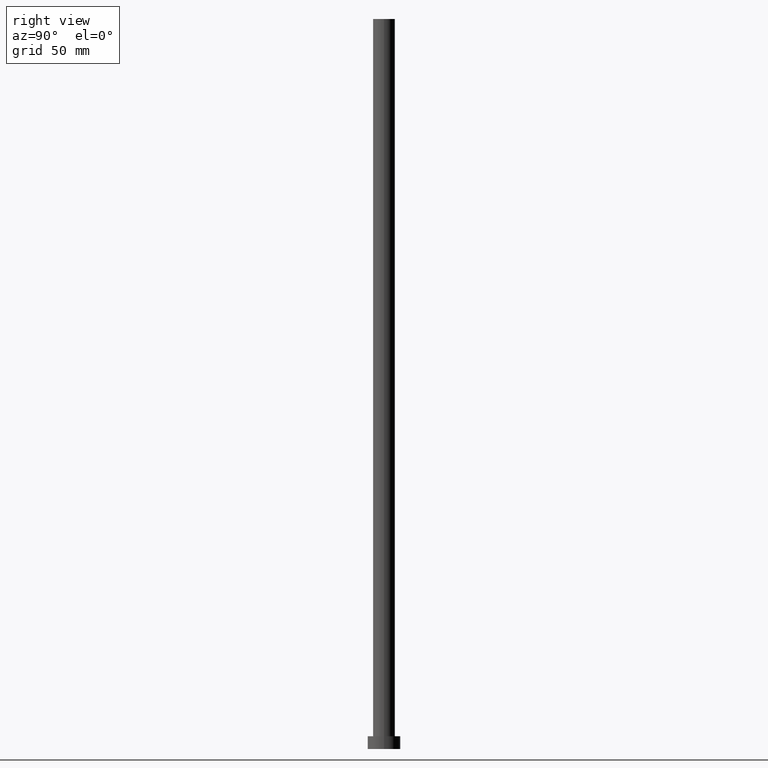
[diagram: clean part render]
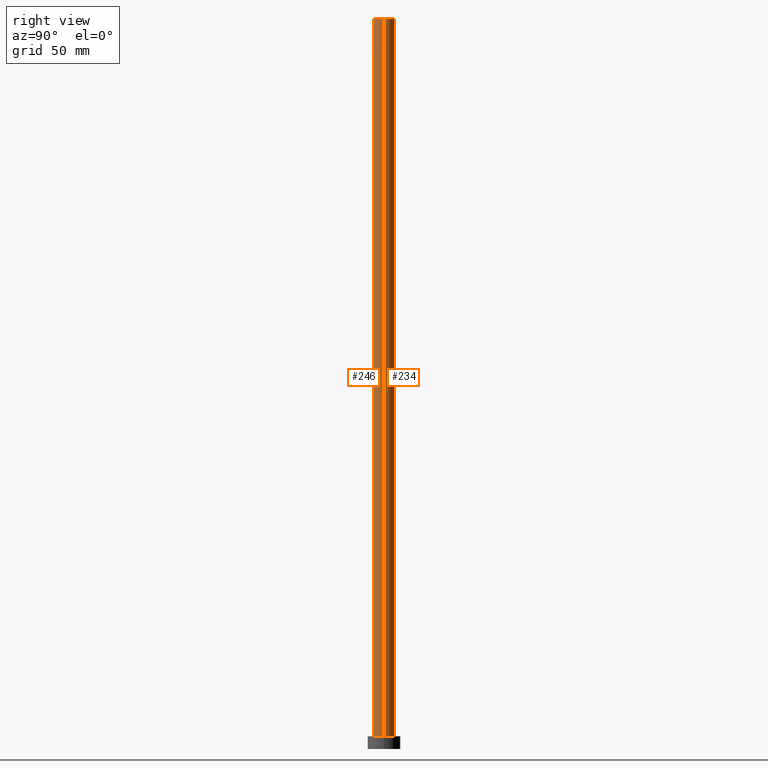
[diagram: same view with one multi-face feature highlighted, each face labeled with its STEP entity id]
A machine part, right view. The highlighted faces form ONE feature: a constant-radius fillet chain: 2 tangent blend faces with common blend radius 6 mm. The faces share edges in the B-rep.
Their STEP definitions:
[1] entity #234 (Cylinder):
#13 = VERTEX_POINT ( 'NONE', #98 ) ;
#17 = CARTESIAN_POINT ( 'NONE',  ( 6.000000000000000888, 7.347880794884120722E-16, 400.0000000000000000 ) ) ;
#20 = DIRECTION ( 'NONE',  ( -1.000000000000000000, 0.000000000000000000, 0.000000000000000000 ) ) ;
#23 = CARTESIAN_POINT ( 'NONE',  ( -6.000000000000000888, 0.000000000000000000, 400.0000000000000000 ) ) ;
#27 = CIRCLE ( 'NONE', #62, 6.000000000000000888 ) ;
#62 = AXIS2_PLACEMENT_3D ( 'NONE', #176, #112, #202 ) ;
#78 = EDGE_CURVE ( 'NONE', #124, #210, #225, .T. ) ;
#81 = CIRCLE ( 'NONE', #153, 6.000000000000000888 ) ;
#87 = EDGE_CURVE ( 'NONE', #143, #13, #180, .T. ) ;
#94 = ORIENTED_EDGE ( 'NONE', *, *, #87, .T. ) ;
#98 = CARTESIAN_POINT ( 'NONE',  ( 6.000000000000000888, 7.347880794884120722E-16, 7.000000000000000000 ) ) ;
#100 = CARTESIAN_POINT ( 'NONE',  ( 0.000000000000000000, 0.000000000000000000, 400.0000000000000000 ) ) ;
#101 = VECTOR ( 'NONE', #117, 1000.000000000000000 ) ;
#102 = ORIENTED_EDGE ( 'NONE', *, *, #252, .T. ) ;
#112 = DIRECTION ( 'NONE',  ( 0.000000000000000000, 0.000000000000000000, 1.000000000000000000 ) ) ;
#115 = ORIENTED_EDGE ( 'NONE', *, *, #78, .F. ) ;
#117 = DIRECTION ( 'NONE',  ( -0.000000000000000000, -0.000000000000000000, -1.000000000000000000 ) ) ;
#119 = AXIS2_PLACEMENT_3D ( 'NONE', #164, #237, #20 ) ;
#123 = CYLINDRICAL_SURFACE ( 'NONE', #119, 6.000000000000000888 ) ;
#124 = VERTEX_POINT ( 'NONE', #23 ) ;
#125 = CARTESIAN_POINT ( 'NONE',  ( 6.000000000000000888, 7.347880794884120722E-16, 400.0000000000000000 ) ) ;
#138 = DIRECTION ( 'NONE',  ( 1.000000000000000000, 0.000000000000000000, 0.000000000000000000 ) ) ;
#143 = VERTEX_POINT ( 'NONE', #125 ) ;
#148 = CARTESIAN_POINT ( 'NONE',  ( -6.000000000000000888, 0.000000000000000000, 7.000000000000000000 ) ) ;
#153 = AXIS2_PLACEMENT_3D ( 'NONE', #100, #243, #138 ) ;
#160 = DIRECTION ( 'NONE',  ( -0.000000000000000000, -0.000000000000000000, -1.000000000000000000 ) ) ;
#164 = CARTESIAN_POINT ( 'NONE',  ( 0.000000000000000000, 0.000000000000000000, 400.0000000000000000 ) ) ;
#176 = CARTESIAN_POINT ( 'NONE',  ( 0.000000000000000000, 0.000000000000000000, 7.000000000000000000 ) ) ;
#180 = LINE ( 'NONE', #17, #244 ) ;
#187 = ORIENTED_EDGE ( 'NONE', *, *, #238, .F. ) ;
#202 = DIRECTION ( 'NONE',  ( 1.000000000000000000, 0.000000000000000000, 0.000000000000000000 ) ) ;
#206 = EDGE_LOOP ( 'NONE', ( #187, #94, #102, #115 ) ) ;
#208 = CARTESIAN_POINT ( 'NONE',  ( -6.000000000000000888, 0.000000000000000000, 400.0000000000000000 ) ) ;
#210 = VERTEX_POINT ( 'NONE', #148 ) ;
#225 = LINE ( 'NONE', #208, #101 ) ;
#234 = ADVANCED_FACE ( 'NONE', ( #253 ), #123, .T. ) ;
#237 = DIRECTION ( 'NONE',  ( -0.000000000000000000, -0.000000000000000000, -1.000000000000000000 ) ) ;
#238 = EDGE_CURVE ( 'NONE', #143, #124, #81, .T. ) ;
#243 = DIRECTION ( 'NONE',  ( 0.000000000000000000, 0.000000000000000000, 1.000000000000000000 ) ) ;
#244 = VECTOR ( 'NONE', #160, 1000.000000000000000 ) ;
#252 = EDGE_CURVE ( 'NONE', #13, #210, #27, .T. ) ;
#253 = FACE_OUTER_BOUND ( 'NONE', #206, .T. ) ;
[2] entity #246 (Cylinder):
#10 = DIRECTION ( 'NONE',  ( -0.000000000000000000, -0.000000000000000000, -1.000000000000000000 ) ) ;
#11 = AXIS2_PLACEMENT_3D ( 'NONE', #207, #10, #157 ) ;
#13 = VERTEX_POINT ( 'NONE', #98 ) ;
#17 = CARTESIAN_POINT ( 'NONE',  ( 6.000000000000000888, 7.347880794884120722E-16, 400.0000000000000000 ) ) ;
#23 = CARTESIAN_POINT ( 'NONE',  ( -6.000000000000000888, 0.000000000000000000, 400.0000000000000000 ) ) ;
#37 = CARTESIAN_POINT ( 'NONE',  ( 0.000000000000000000, 0.000000000000000000, 400.0000000000000000 ) ) ;
#39 = CIRCLE ( 'NONE', #73, 6.000000000000000888 ) ;
#53 = DIRECTION ( 'NONE',  ( 0.000000000000000000, 0.000000000000000000, 1.000000000000000000 ) ) ;
#60 = DIRECTION ( 'NONE',  ( 0.000000000000000000, 0.000000000000000000, 1.000000000000000000 ) ) ;
#63 = ORIENTED_EDGE ( 'NONE', *, *, #82, .F. ) ;
#73 = AXIS2_PLACEMENT_3D ( 'NONE', #190, #53, #156 ) ;
#74 = DIRECTION ( 'NONE',  ( 1.000000000000000000, 0.000000000000000000, 0.000000000000000000 ) ) ;
#75 = EDGE_CURVE ( 'NONE', #210, #13, #39, .T. ) ;
#78 = EDGE_CURVE ( 'NONE', #124, #210, #225, .T. ) ;
#82 = EDGE_CURVE ( 'NONE', #124, #143, #233, .T. ) ;
#87 = EDGE_CURVE ( 'NONE', #143, #13, #180, .T. ) ;
#91 = CYLINDRICAL_SURFACE ( 'NONE', #11, 6.000000000000000888 ) ;
#98 = CARTESIAN_POINT ( 'NONE',  ( 6.000000000000000888, 7.347880794884120722E-16, 7.000000000000000000 ) ) ;
#101 = VECTOR ( 'NONE', #117, 1000.000000000000000 ) ;
#117 = DIRECTION ( 'NONE',  ( -0.000000000000000000, -0.000000000000000000, -1.000000000000000000 ) ) ;
#124 = VERTEX_POINT ( 'NONE', #23 ) ;
#125 = CARTESIAN_POINT ( 'NONE',  ( 6.000000000000000888, 7.347880794884120722E-16, 400.0000000000000000 ) ) ;
#143 = VERTEX_POINT ( 'NONE', #125 ) ;
#148 = CARTESIAN_POINT ( 'NONE',  ( -6.000000000000000888, 0.000000000000000000, 7.000000000000000000 ) ) ;
#156 = DIRECTION ( 'NONE',  ( 1.000000000000000000, 0.000000000000000000, 0.000000000000000000 ) ) ;
#157 = DIRECTION ( 'NONE',  ( -1.000000000000000000, 0.000000000000000000, 0.000000000000000000 ) ) ;
#159 = ORIENTED_EDGE ( 'NONE', *, *, #87, .F. ) ;
#160 = DIRECTION ( 'NONE',  ( -0.000000000000000000, -0.000000000000000000, -1.000000000000000000 ) ) ;
#166 = EDGE_LOOP ( 'NONE', ( #159, #63, #249, #167 ) ) ;
#167 = ORIENTED_EDGE ( 'NONE', *, *, #75, .T. ) ;
#180 = LINE ( 'NONE', #17, #244 ) ;
#189 = FACE_OUTER_BOUND ( 'NONE', #166, .T. ) ;
#190 = CARTESIAN_POINT ( 'NONE',  ( 0.000000000000000000, 0.000000000000000000, 7.000000000000000000 ) ) ;
#207 = CARTESIAN_POINT ( 'NONE',  ( 0.000000000000000000, 0.000000000000000000, 400.0000000000000000 ) ) ;
#208 = CARTESIAN_POINT ( 'NONE',  ( -6.000000000000000888, 0.000000000000000000, 400.0000000000000000 ) ) ;
#210 = VERTEX_POINT ( 'NONE', #148 ) ;
#225 = LINE ( 'NONE', #208, #101 ) ;
#233 = CIRCLE ( 'NONE', #250, 6.000000000000000888 ) ;
#244 = VECTOR ( 'NONE', #160, 1000.000000000000000 ) ;
#246 = ADVANCED_FACE ( 'NONE', ( #189 ), #91, .T. ) ;
#249 = ORIENTED_EDGE ( 'NONE', *, *, #78, .T. ) ;
#250 = AXIS2_PLACEMENT_3D ( 'NONE', #37, #60, #74 ) ;